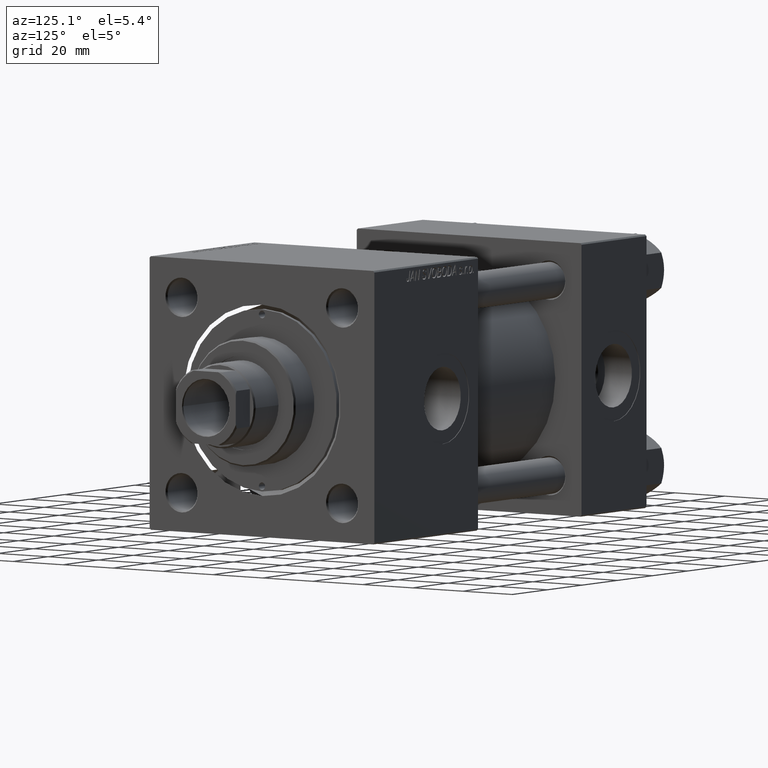
[diagram: clean part render]
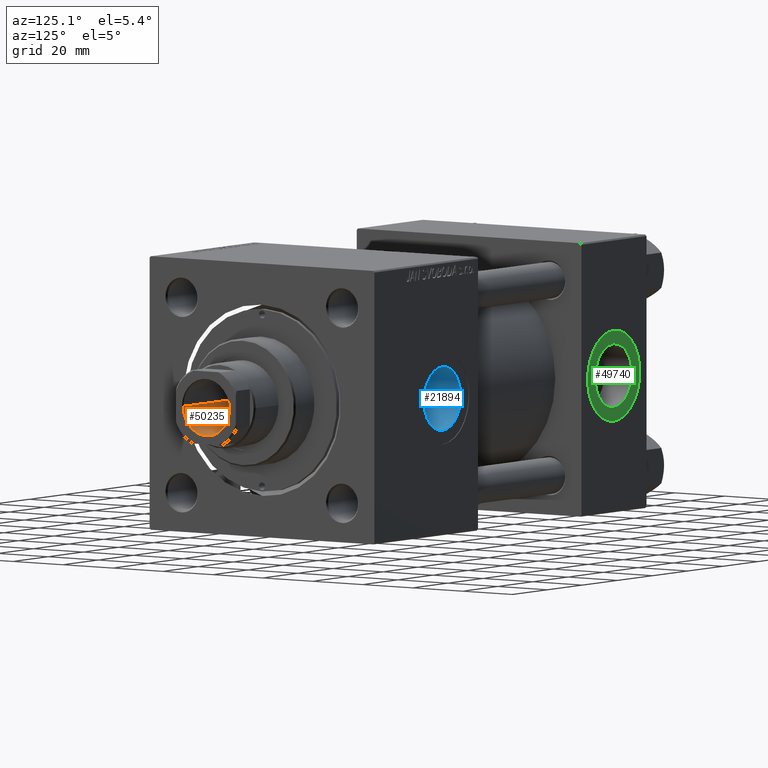
[diagram: same view with three faces highlighted in distinct colors, each labeled with its STEP entity id]
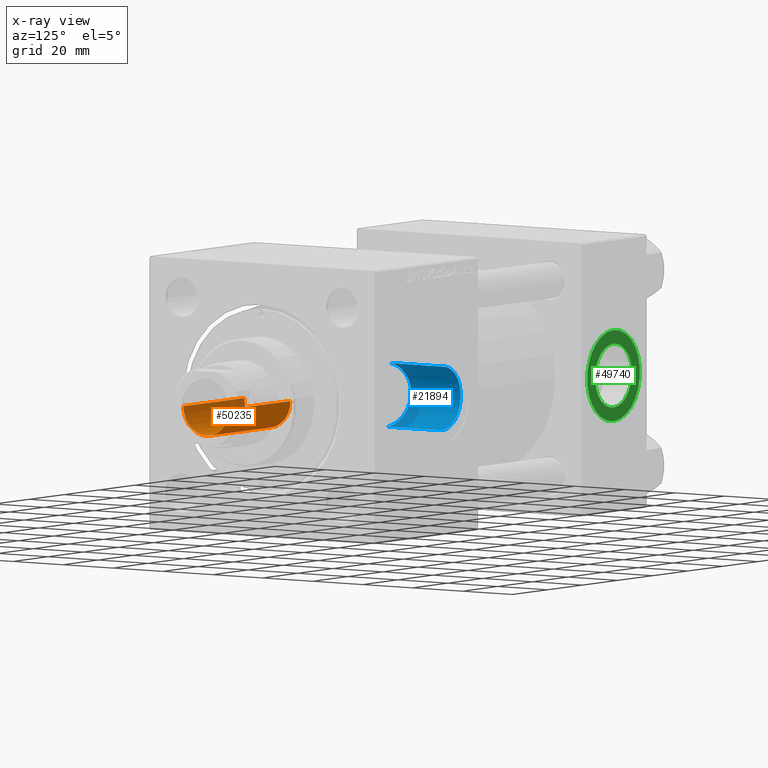
[diagram: x-ray of the same camera — body ghosted, the three highlighted faces saturated]
A machine part, auxiliary view with three faces highlighted in distinct colors.
The next image is the same camera in x-ray (body ghosted, the three faces saturated) — at least one of them is partly hidden behind the body in this view.
Their STEP definitions:

[orange] entity #50235 — the highlighted cylindrical surface (edge-blend (fillet) strip) has radius 9.25 mm, axis along (1, 0, 0).
#1119 = LINE ( 'NONE', #36016, #28853 ) ;
#3753 = DIRECTION ( 'NONE',  ( 0.000000000000000000, 0.000000000000000000, 1.000000000000000000 ) ) ;
#4748 = EDGE_CURVE ( 'NONE', #46759, #41736, #1119, .T. ) ;
#7135 = DIRECTION ( 'NONE',  ( 1.000000000000000000, 0.000000000000000000, 0.000000000000000000 ) ) ;
#7575 = DIRECTION ( 'NONE',  ( 1.000000000000000000, 0.000000000000000000, 0.000000000000000000 ) ) ;
#8060 = VERTEX_POINT ( 'NONE', #14101 ) ;
#9377 = CARTESIAN_POINT ( 'NONE',  ( 0.000000000000000000, 0.000000000000000000, 114.9999999999999858 ) ) ;
#10247 = ORIENTED_EDGE ( 'NONE', *, *, #50378, .F. ) ;
#10904 = CIRCLE ( 'NONE', #17411, 9.249999999999992895 ) ;
#13774 = CYLINDRICAL_SURFACE ( 'NONE', #46694, 9.249999999999994671 ) ;
#14101 = CARTESIAN_POINT ( 'NONE',  ( 9.249999999999994671, 0.000000000000000000, 149.6999999999999886 ) ) ;
#15455 = CIRCLE ( 'NONE', #17891, 9.249999999999994671 ) ;
#17195 = CARTESIAN_POINT ( 'NONE',  ( -9.249999999999994671, 1.132798289211300909E-15, 149.6999999999999886 ) ) ;
#17275 = DIRECTION ( 'NONE',  ( 1.000000000000000000, 0.000000000000000000, 0.000000000000000000 ) ) ;
#17411 = AXIS2_PLACEMENT_3D ( 'NONE', #9377, #21103, #17275 ) ;
#17891 = AXIS2_PLACEMENT_3D ( 'NONE', #26694, #3753, #7575 ) ;
#19972 = ORIENTED_EDGE ( 'NONE', *, *, #35898, .T. ) ;
#21103 = DIRECTION ( 'NONE',  ( -0.000000000000000000, -0.000000000000000000, 1.000000000000000000 ) ) ;
#21461 = LINE ( 'NONE', #48212, #41465 ) ;
#21537 = VERTEX_POINT ( 'NONE', #31090 ) ;
#26575 = ORIENTED_EDGE ( 'NONE', *, *, #32520, .T. ) ;
#26694 = CARTESIAN_POINT ( 'NONE',  ( 0.000000000000000000, 0.000000000000000000, 149.6999999999999886 ) ) ;
#28434 = ORIENTED_EDGE ( 'NONE', *, *, #4748, .F. ) ;
#28853 = VECTOR ( 'NONE', #32196, 1000.000000000000000 ) ;
#31090 = CARTESIAN_POINT ( 'NONE',  ( 9.249999999999992895, 0.000000000000000000, 114.9999999999999858 ) ) ;
#32196 = DIRECTION ( 'NONE',  ( -0.000000000000000000, -0.000000000000000000, 1.000000000000000000 ) ) ;
#32400 = DIRECTION ( 'NONE',  ( -0.000000000000000000, -0.000000000000000000, 1.000000000000000000 ) ) ;
#32520 = EDGE_CURVE ( 'NONE', #21537, #8060, #21461, .T. ) ;
#33386 = FACE_OUTER_BOUND ( 'NONE', #44614, .T. ) ;
#35898 = EDGE_CURVE ( 'NONE', #8060, #41736, #15455, .T. ) ;
#36016 = CARTESIAN_POINT ( 'NONE',  ( -9.249999999999994671, 1.132798289211300909E-15, 150.0000000000000000 ) ) ;
#41465 = VECTOR ( 'NONE', #32400, 1000.000000000000000 ) ;
#41544 = DIRECTION ( 'NONE',  ( -0.000000000000000000, -0.000000000000000000, 1.000000000000000000 ) ) ;
#41736 = VERTEX_POINT ( 'NONE', #17195 ) ;
#41798 = CARTESIAN_POINT ( 'NONE',  ( 0.000000000000000000, 0.000000000000000000, 150.0000000000000000 ) ) ;
#44614 = EDGE_LOOP ( 'NONE', ( #28434, #10247, #26575, #19972 ) ) ;
#46694 = AXIS2_PLACEMENT_3D ( 'NONE', #41798, #41544, #7135 ) ;
#46759 = VERTEX_POINT ( 'NONE', #48642 ) ;
#48212 = CARTESIAN_POINT ( 'NONE',  ( 9.249999999999994671, 0.000000000000000000, 150.0000000000000000 ) ) ;
#48642 = CARTESIAN_POINT ( 'NONE',  ( -9.249999999999992895, 1.132798289211300712E-15, 114.9999999999999858 ) ) ;
#50235 = ADVANCED_FACE ( 'NONE', ( #33386 ), #13774, .F. ) ;
#50378 = EDGE_CURVE ( 'NONE', #21537, #46759, #10904, .T. ) ;

[blue] entity #21894 — the highlighted cylindrical surface (edge-blend (fillet) strip) has radius 10.48 mm, axis along (0, 1, 0).
#925 = VERTEX_POINT ( 'NONE', #12930 ) ;
#2435 = ORIENTED_EDGE ( 'NONE', *, *, #28551, .T. ) ;
#2673 = CARTESIAN_POINT ( 'NONE',  ( 105.7934469296605471, 24.88653244420935096, 2.403216301759345530 ) ) ;
#2926 = CARTESIAN_POINT ( 'NONE',  ( 112.2810024023067257, 22.99792823106282214, 9.803852027551149817 ) ) ;
#3675 = CARTESIAN_POINT ( 'NONE',  ( 113.6024807966723102, 22.82111456472381050, 10.20795265357759973 ) ) ;
#5424 = VERTEX_POINT ( 'NONE', #7851 ) ;
#6329 = DIRECTION ( 'NONE',  ( -0.000000000000000000, 1.000000000000000000, -0.000000000000000000 ) ) ;
#6484 = CARTESIAN_POINT ( 'NONE',  ( 109.0691750376469287, 23.72760602978986455, -7.889944006337748839 ) ) ;
#6832 = DIRECTION ( 'NONE',  ( 0.000000000000000000, 0.000000000000000000, 1.000000000000000000 ) ) ;
#6840 = CARTESIAN_POINT ( 'NONE',  ( 116.0000000000000000, -29.64191626734007201, 0.000000000000000000 ) ) ;
#6873 = EDGE_CURVE ( 'NONE', #925, #5424, #41657, .T. ) ;
#7239 = CARTESIAN_POINT ( 'NONE',  ( 113.2628663816418992, 22.85945295365116436, 10.12213220648006029 ) ) ;
#7451 = CIRCLE ( 'NONE', #44036, 10.48000000000000043 ) ;
#7491 = CARTESIAN_POINT ( 'NONE',  ( 105.8779669537605628, 24.85189244119417040, 2.737634207123015972 ) ) ;
#7851 = CARTESIAN_POINT ( 'NONE',  ( 116.0000000000000000, 44.80000000000001847, 10.48000000000000043 ) ) ;
#9047 = CARTESIAN_POINT ( 'NONE',  ( 115.9999999999999574, 22.69734786269092908, -10.48000000000001286 ) ) ;
#9298 = ORIENTED_EDGE ( 'NONE', *, *, #31043, .T. ) ;
#10311 = CARTESIAN_POINT ( 'NONE',  ( 107.4852564452334889, 24.24127047932947221, -6.119244249603054797 ) ) ;
#11071 = CARTESIAN_POINT ( 'NONE',  ( 105.6576090084523969, 24.94255044980511471, 1.727461359525263473 ) ) ;
#11314 = CARTESIAN_POINT ( 'NONE',  ( 105.5202219243777364, 24.99990696930468914, -0.7020592370721171482 ) ) ;
#12930 = CARTESIAN_POINT ( 'NONE',  ( 116.0000000000000000, 22.69734786269092197, 10.48000000000000043 ) ) ;
#13629 = DIRECTION ( 'NONE',  ( -0.000000000000000000, 1.000000000000000000, -0.000000000000000000 ) ) ;
#14134 = CARTESIAN_POINT ( 'NONE',  ( 106.5951675388459705, 24.56748508602188608, -4.674328070843617233 ) ) ;
#14896 = CARTESIAN_POINT ( 'NONE',  ( 106.0806528163204376, 24.77003135787058241, 3.399521362015801795 ) ) ;
#15147 = CARTESIAN_POINT ( 'NONE',  ( 105.6062911791970578, 24.96393005755822259, 1.386124428227904826 ) ) ;
#16943 = CARTESIAN_POINT ( 'NONE',  ( 114.6166885166040714, 22.72945378449816189, -10.41125041824599151 ) ) ;
#17455 = CARTESIAN_POINT ( 'NONE',  ( 115.3034659601953962, 22.69734786269090776, -10.47999999999999332 ) ) ;
#18167 = VERTEX_POINT ( 'NONE', #30399 ) ;
#18216 = CARTESIAN_POINT ( 'NONE',  ( 106.5972116635182658, 24.56669364692478297, 4.678748159390214489 ) ) ;
#18473 = CARTESIAN_POINT ( 'NONE',  ( 107.6971979191698239, 24.16742604129798266, 6.403892675369895038 ) ) ;
#18978 = CARTESIAN_POINT ( 'NONE',  ( 105.8774204008529125, 24.85211448620741592, -2.735702537687464186 ) ) ;
#19505 = DIRECTION ( 'NONE',  ( -0.000000000000000000, 1.000000000000000000, -0.000000000000000000 ) ) ;
#21894 = ADVANCED_FACE ( 'NONE', ( #34097 ), #41243, .F. ) ;
#21898 = VECTOR ( 'NONE', #19505, 1000.000000000000000 ) ;
#22041 = CARTESIAN_POINT ( 'NONE',  ( 110.7282494435932989, 23.29501474869027788, -9.083392073400762712 ) ) ;
#22294 = CARTESIAN_POINT ( 'NONE',  ( 106.9171465358876389, 24.44468804556172259, -5.272058887039591468 ) ) ;
#22392 = DIRECTION ( 'NONE',  ( 0.000000000000000000, 0.000000000000000000, 1.000000000000000000 ) ) ;
#22545 = CARTESIAN_POINT ( 'NONE',  ( 108.3583976685860080, 23.94811038994633279, 7.179864457733689420 ) ) ;
#22791 = CARTESIAN_POINT ( 'NONE',  ( 115.3073892563825495, 22.69734786269092552, 10.48000000000000043 ) ) ;
#23034 = CARTESIAN_POINT ( 'NONE',  ( 106.1986316166709372, 24.72289697108948303, -3.725725694189060633 ) ) ;
#23317 = LINE ( 'NONE', #27136, #21898 ) ;
#24009 = VECTOR ( 'NONE', #13629, 1000.000000000000000 ) ;
#24544 = EDGE_LOOP ( 'NONE', ( #38681, #9298, #2435, #43457 ) ) ;
#24590 = CARTESIAN_POINT ( 'NONE',  ( 113.2625725609531031, 22.85946943249185637, -10.12210048819257757 ) ) ;
#25606 = CARTESIAN_POINT ( 'NONE',  ( 116.0000000000000000, -29.64191626734007201, 10.48000000000000043 ) ) ;
#25862 = CARTESIAN_POINT ( 'NONE',  ( 105.5198898269284484, 25.00004618454965666, 0.3460486699088876072 ) ) ;
#26116 = CARTESIAN_POINT ( 'NONE',  ( 109.0758525530452800, 23.72565358630828669, 7.895767310681550022 ) ) ;
#26618 = CARTESIAN_POINT ( 'NONE',  ( 106.1992050399645393, 24.72266741087924657, 3.727330997008741154 ) ) ;
#26863 = CARTESIAN_POINT ( 'NONE',  ( 112.6029776176335560, 22.94782015708121747, 9.920166318359219915 ) ) ;
#27136 = CARTESIAN_POINT ( 'NONE',  ( 116.0000000000000000, -29.64191626734007201, -10.48000000000000043 ) ) ;
#28551 = EDGE_CURVE ( 'NONE', #18167, #5424, #7451, .T. ) ;
#28833 = B_SPLINE_CURVE_WITH_KNOTS ( 'NONE', 3,
 ( #9047, #17455, #16943, #43957, #24590, #32475, #32987, #48032, #22041, #45991, #6484, #46235, #45739, #37574, #10311, #22294, #14134, #23034, #42396, #18978, #38573, #37826, #11314, #25862, #41398, #15147, #11071, #2673, #7491, #14896, #26618, #18216, #30195, #30448, #18473, #49310, #22545, #26116, #33747, #38072, #42152, #2926, #26863, #7239, #3675, #49552, #22791, #49809 ),
 .UNSPECIFIED., .F., .F.,
 ( 4, 2, 2, 2, 2, 2, 2, 2, 2, 2, 2, 2, 2, 2, 2, 2, 2, 2, 2, 2, 2, 2, 2, 4 ),
 ( 0.01463821909121441542, 0.01670930280020108474, 0.01774484465469440206, 0.01878038650918771590, 0.02085147021817438523, 0.02292255392716105455, 0.02395809578165437534, 0.02499363763614769612, 0.02706472134513433422, 0.02810026319962765501, 0.02913580505412097579, 0.03120688876310761389, 0.03224243061760093121, 0.03327797247209425546, 0.03431351432658757972, 0.03534905618108089703, 0.03742013989006751778, 0.03845568174456083510, 0.03949122359905414548, 0.04156230730804073847, 0.04363339101702734535, 0.04466893287152064185, 0.04570447472601393835, 0.04777555843500053134 ),
 .UNSPECIFIED. ) ;
#30195 = CARTESIAN_POINT ( 'NONE',  ( 106.9205644474328949, 24.44339300292596917, 5.278250371298494059 ) ) ;
#30399 = CARTESIAN_POINT ( 'NONE',  ( 116.0000000000000000, 44.80000000000001847, -10.48000000000000043 ) ) ;
#30448 = CARTESIAN_POINT ( 'NONE',  ( 107.4914286754354862, 24.23909680393989063, 6.127889787572176949 ) ) ;
#31043 = EDGE_CURVE ( 'NONE', #32241, #18167, #23317, .T. ) ;
#32241 = VERTEX_POINT ( 'NONE', #42133 ) ;
#32475 = CARTESIAN_POINT ( 'NONE',  ( 112.6000436906344930, 22.94823602494485115, -9.919209866290810140 ) ) ;
#32987 = CARTESIAN_POINT ( 'NONE',  ( 112.2769050068437053, 22.99857768367994737, -9.802338176841917772 ) ) ;
#33747 = CARTESIAN_POINT ( 'NONE',  ( 109.5996881253369537, 23.57603182418388599, 8.326838647318266950 ) ) ;
#34097 = FACE_OUTER_BOUND ( 'NONE', #24544, .T. ) ;
#34946 = AXIS2_PLACEMENT_3D ( 'NONE', #6840, #6329, #22392 ) ;
#37574 = CARTESIAN_POINT ( 'NONE',  ( 107.6900300022859653, 24.16988760624360566, -6.394633543806203413 ) ) ;
#37826 = CARTESIAN_POINT ( 'NONE',  ( 105.5896143113014602, 24.97059224946895739, -1.388621070306799821 ) ) ;
#38072 = CARTESIAN_POINT ( 'NONE',  ( 110.7388075418619167, 23.29260463244819590, 9.089559278086982275 ) ) ;
#38162 = CARTESIAN_POINT ( 'NONE',  ( 116.0000000000000000, 44.80000000000001847, 0.000000000000000000 ) ) ;
#38573 = CARTESIAN_POINT ( 'NONE',  ( 105.7929659686117105, 24.88673000804575253, -2.401115563268500619 ) ) ;
#38681 = ORIENTED_EDGE ( 'NONE', *, *, #39944, .F. ) ;
#39944 = EDGE_CURVE ( 'NONE', #32241, #925, #28833, .T. ) ;
#41243 = CYLINDRICAL_SURFACE ( 'NONE', #34946, 10.48000000000000043 ) ;
#41398 = CARTESIAN_POINT ( 'NONE',  ( 105.5374198107919170, 24.99268303089188592, 0.6963761674250767975 ) ) ;
#41657 = LINE ( 'NONE', #25606, #24009 ) ;
#42133 = CARTESIAN_POINT ( 'NONE',  ( 115.9999999999999574, 22.69734786269092908, -10.48000000000001286 ) ) ;
#42152 = CARTESIAN_POINT ( 'NONE',  ( 111.3377099006113014, 23.16297019228597875, 9.410509118438316278 ) ) ;
#42396 = CARTESIAN_POINT ( 'NONE',  ( 106.0804400412437190, 24.77011599629383909, -3.398972836081203930 ) ) ;
#43457 = ORIENTED_EDGE ( 'NONE', *, *, #6873, .F. ) ;
#43957 = CARTESIAN_POINT ( 'NONE',  ( 113.6006309434185511, 22.82132339589591652, -10.20748497981750269 ) ) ;
#44036 = AXIS2_PLACEMENT_3D ( 'NONE', #38162, #49891, #6832 ) ;
#45739 = CARTESIAN_POINT ( 'NONE',  ( 108.1238065727191042, 24.02420213949847394, -6.921886781690125723 ) ) ;
#45991 = CARTESIAN_POINT ( 'NONE',  ( 109.5910252885425109, 23.57840781445655409, -8.320120710421930355 ) ) ;
#46235 = CARTESIAN_POINT ( 'NONE',  ( 108.3518897779276529, 23.95018848110602860, -7.172942060376100493 ) ) ;
#48032 = CARTESIAN_POINT ( 'NONE',  ( 111.3305262906433768, 23.16436360660825500, -9.407119406203948486 ) ) ;
#49310 = CARTESIAN_POINT ( 'NONE',  ( 108.1304464638024427, 24.02202805608322222, 6.929393258577156267 ) ) ;
#49552 = CARTESIAN_POINT ( 'NONE',  ( 114.6214610596254033, 22.72910592596695878, 10.41201292843505399 ) ) ;
#49809 = CARTESIAN_POINT ( 'NONE',  ( 116.0000000000000000, 22.69734786269092197, 10.48000000000000043 ) ) ;
#49891 = DIRECTION ( 'NONE',  ( 0.000000000000000000, 1.000000000000000000, 0.000000000000000000 ) ) ;

[green] entity #49740 — the highlighted planar face has unit normal (0, 1, 0).
#1716 = EDGE_CURVE ( 'NONE', #46812, #35557, #16521, .T. ) ;
#2233 = DIRECTION ( 'NONE',  ( 0.000000000000000000, -0.000000000000000000, 1.000000000000000000 ) ) ;
#5793 = FACE_OUTER_BOUND ( 'NONE', #29073, .T. ) ;
#8182 = DIRECTION ( 'NONE',  ( 0.000000000000000000, 0.000000000000000000, 1.000000000000000000 ) ) ;
#8687 = AXIS2_PLACEMENT_3D ( 'NONE', #35942, #32627, #43848 ) ;
#11450 = AXIS2_PLACEMENT_3D ( 'NONE', #17326, #13753, #20653 ) ;
#11687 = AXIS2_PLACEMENT_3D ( 'NONE', #40959, #28993, #2233 ) ;
#12512 = DIRECTION ( 'NONE',  ( 0.000000000000000000, 1.000000000000000000, 0.000000000000000000 ) ) ;
#13039 = DIRECTION ( 'NONE',  ( 0.000000000000000000, 1.000000000000000000, 0.000000000000000000 ) ) ;
#13753 = DIRECTION ( 'NONE',  ( 0.000000000000000000, 1.000000000000000000, 0.000000000000000000 ) ) ;
#14259 = ORIENTED_EDGE ( 'NONE', *, *, #14858, .T. ) ;
#14858 = EDGE_CURVE ( 'NONE', #40644, #26071, #46966, .T. ) ;
#15734 = CIRCLE ( 'NONE', #44213, 15.00000000000000178 ) ;
#16521 = CIRCLE ( 'NONE', #49127, 10.48000000000000043 ) ;
#17326 = CARTESIAN_POINT ( 'NONE',  ( 18.50000000000000000, 44.79999999999998295, 0.000000000000000000 ) ) ;
#20197 = CARTESIAN_POINT ( 'NONE',  ( 18.50000000000000000, 44.79999999999998295, 0.000000000000000000 ) ) ;
#20442 = CIRCLE ( 'NONE', #11450, 10.48000000000000043 ) ;
#20653 = DIRECTION ( 'NONE',  ( 0.000000000000000000, 0.000000000000000000, 1.000000000000000000 ) ) ;
#24516 = DIRECTION ( 'NONE',  ( 0.000000000000000000, 0.000000000000000000, 1.000000000000000000 ) ) ;
#26071 = VERTEX_POINT ( 'NONE', #34295 ) ;
#27555 = ORIENTED_EDGE ( 'NONE', *, *, #1716, .F. ) ;
#27996 = EDGE_LOOP ( 'NONE', ( #27555, #47926 ) ) ;
#28993 = DIRECTION ( 'NONE',  ( 0.000000000000000000, 1.000000000000000000, 0.000000000000000000 ) ) ;
#29073 = EDGE_LOOP ( 'NONE', ( #14259, #29315 ) ) ;
#29315 = ORIENTED_EDGE ( 'NONE', *, *, #44900, .T. ) ;
#31125 = CARTESIAN_POINT ( 'NONE',  ( 18.50000000000000000, 44.79999999999998295, 0.000000000000000000 ) ) ;
#32627 = DIRECTION ( 'NONE',  ( 0.000000000000000000, 1.000000000000000000, 0.000000000000000000 ) ) ;
#34295 = CARTESIAN_POINT ( 'NONE',  ( 18.50000000000000355, 44.79999999999998295, -15.00000000000000178 ) ) ;
#35557 = VERTEX_POINT ( 'NONE', #35889 ) ;
#35889 = CARTESIAN_POINT ( 'NONE',  ( 18.50000000000000000, 44.79999999999998295, -10.48000000000000043 ) ) ;
#35942 = CARTESIAN_POINT ( 'NONE',  ( 18.50000000000000000, 44.79999999999998295, 0.000000000000000000 ) ) ;
#37640 = FACE_BOUND ( 'NONE', #27996, .T. ) ;
#38718 = EDGE_CURVE ( 'NONE', #35557, #46812, #20442, .T. ) ;
#40644 = VERTEX_POINT ( 'NONE', #50312 ) ;
#40959 = CARTESIAN_POINT ( 'NONE',  ( 18.50000000000000000, 44.79999999999998295, 0.000000000000000000 ) ) ;
#43848 = DIRECTION ( 'NONE',  ( 0.000000000000000000, 0.000000000000000000, 1.000000000000000000 ) ) ;
#44213 = AXIS2_PLACEMENT_3D ( 'NONE', #20197, #13039, #24516 ) ;
#44791 = PLANE ( 'NONE',  #11687 ) ;
#44900 = EDGE_CURVE ( 'NONE', #26071, #40644, #15734, .T. ) ;
#46325 = CARTESIAN_POINT ( 'NONE',  ( 18.50000000000000000, 44.79999999999998295, 10.48000000000000043 ) ) ;
#46812 = VERTEX_POINT ( 'NONE', #46325 ) ;
#46966 = CIRCLE ( 'NONE', #8687, 15.00000000000000178 ) ;
#47926 = ORIENTED_EDGE ( 'NONE', *, *, #38718, .F. ) ;
#49127 = AXIS2_PLACEMENT_3D ( 'NONE', #31125, #12512, #8182 ) ;
#49740 = ADVANCED_FACE ( 'NONE', ( #37640, #5793 ), #44791, .T. ) ;
#50312 = CARTESIAN_POINT ( 'NONE',  ( 18.50000000000000000, 44.79999999999998295, 15.00000000000000178 ) ) ;